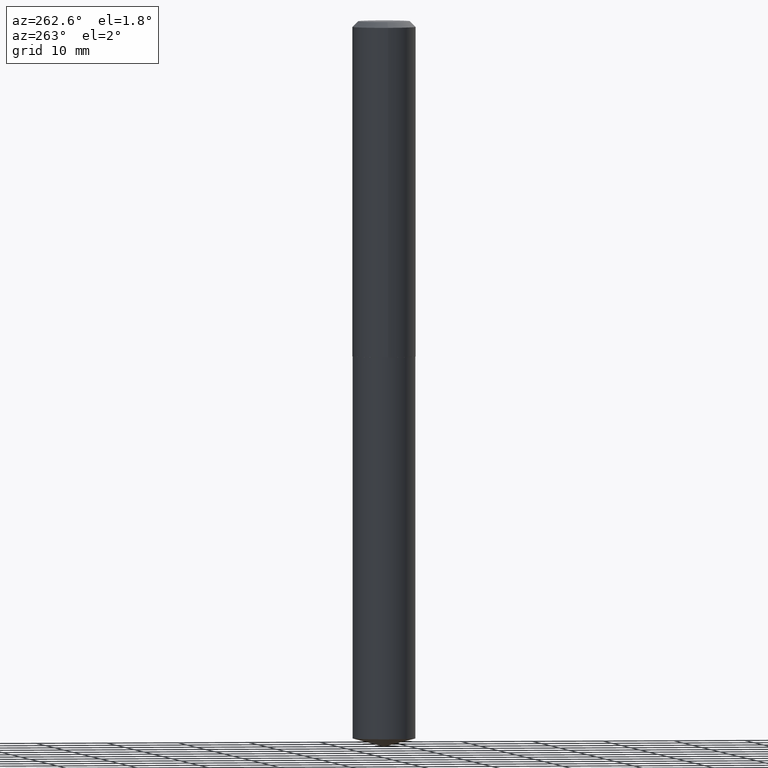
[diagram: clean part render]
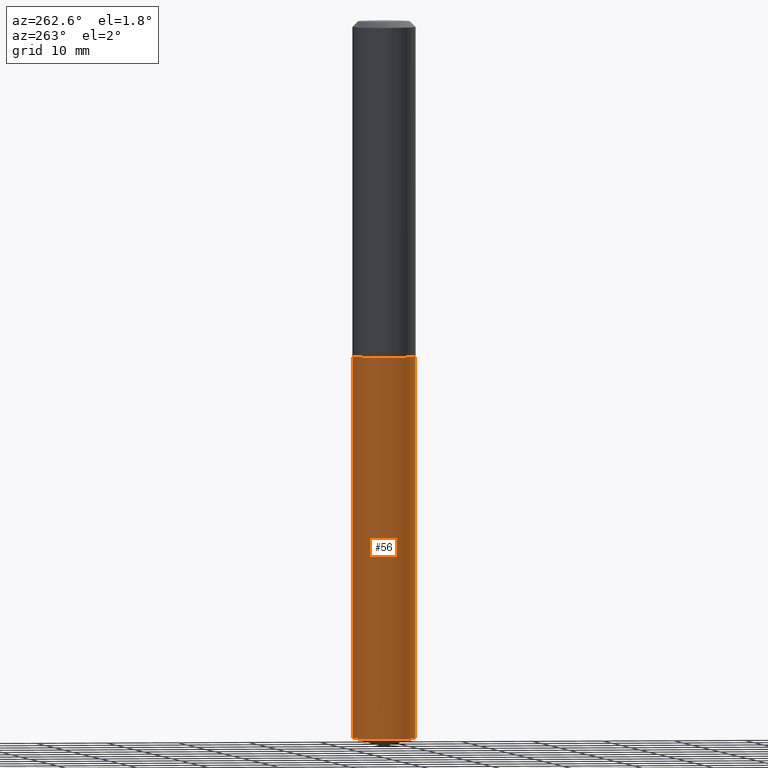
[diagram: same view with one face highlighted and labeled with its STEP entity id]
A machine part, auxiliary view. The second image highlights one B-rep face of the part: STEP entity #56.
In plain terms, the highlighted cylindrical surface (edge-blend (fillet) strip) has radius 4.4196 mm, axis along (-0, 0, 1).
Its self-contained STEP definition (entity closure, byte-faithful):
#5 = VERTEX_POINT ( 'NONE', #363 ) ;
#12 = CARTESIAN_POINT ( 'NONE',  ( 9.667801149324647603E-29, -1.380322537295493422E-14, -3.953376840516984903 ) ) ;
#27 = EDGE_CURVE ( 'NONE', #5, #133, #112, .T. ) ;
#31 = CARTESIAN_POINT ( 'NONE',  ( -1.215035505917364906E-15, -0.1740000000000064273, -1.847999999999999199 ) ) ;
#36 = LINE ( 'NONE', #372, #246 ) ;
#37 = ORIENTED_EDGE ( 'NONE', *, *, #96, .T. ) ;
#54 = EDGE_LOOP ( 'NONE', ( #190, #149, #37, #286 ) ) ;
#56 = ADVANCED_FACE ( 'NONE', ( #301 ), #365, .T. ) ;
#88 = CARTESIAN_POINT ( 'NONE',  ( 4.519226353830132171E-29, -6.452257514182132781E-15, -1.847999999999999865 ) ) ;
#96 = EDGE_CURVE ( 'NONE', #208, #133, #250, .T. ) ;
#99 = CARTESIAN_POINT ( 'NONE',  ( 4.519226353830132171E-29, -6.452257514182132781E-15, -1.847999999999999865 ) ) ;
#112 = CIRCLE ( 'NONE', #361, 0.1739999999999999880 ) ;
#114 = EDGE_CURVE ( 'NONE', #257, #208, #295, .T. ) ;
#123 = VECTOR ( 'NONE', #155, 39.37007874015748143 ) ;
#131 = DIRECTION ( 'NONE',  ( -6.982962677686265133E-15, -1.000000000000000000, 3.140055165131337128E-15 ) ) ;
#133 = VERTEX_POINT ( 'NONE', #31 ) ;
#149 = ORIENTED_EDGE ( 'NONE', *, *, #114, .T. ) ;
#152 = DIRECTION ( 'NONE',  ( -2.445440975892115844E-29, 3.491521193406753176E-15, 1.000000000000000000 ) ) ;
#155 = DIRECTION ( 'NONE',  ( -2.445440975892115844E-29, 3.491521193406753176E-15, 1.000000000000000000 ) ) ;
#169 = DIRECTION ( 'NONE',  ( -6.982962677686265133E-15, -1.000000000000000000, 3.140055165131337128E-15 ) ) ;
#185 = CARTESIAN_POINT ( 'NONE',  ( -1.215035505917364906E-15, -0.1740000000000064273, -1.847999999999999199 ) ) ;
#190 = ORIENTED_EDGE ( 'NONE', *, *, #327, .F. ) ;
#192 = DIRECTION ( 'NONE',  ( -6.982962677686265133E-15, -1.000000000000000000, 3.140055165131337128E-15 ) ) ;
#207 = DIRECTION ( 'NONE',  ( -2.445440975892115844E-29, 3.491521193406753176E-15, 1.000000000000000000 ) ) ;
#208 = VERTEX_POINT ( 'NONE', #287 ) ;
#223 = DIRECTION ( 'NONE',  ( -2.445440975892115844E-29, 3.491521193406753176E-15, 1.000000000000000000 ) ) ;
#235 = CARTESIAN_POINT ( 'NONE',  ( 1.236344360222670479E-15, 0.1739999999999861380, -3.953376840516985347 ) ) ;
#246 = VECTOR ( 'NONE', #152, 39.37007874015748143 ) ;
#250 = LINE ( 'NONE', #185, #123 ) ;
#257 = VERTEX_POINT ( 'NONE', #235 ) ;
#267 = AXIS2_PLACEMENT_3D ( 'NONE', #99, #343, #131 ) ;
#286 = ORIENTED_EDGE ( 'NONE', *, *, #27, .F. ) ;
#287 = CARTESIAN_POINT ( 'NONE',  ( -1.215035505917313433E-15, -0.1740000000000137825, -3.953376840516984014 ) ) ;
#295 = CIRCLE ( 'NONE', #373, 0.1739999999999999880 ) ;
#301 = FACE_OUTER_BOUND ( 'NONE', #54, .T. ) ;
#327 = EDGE_CURVE ( 'NONE', #257, #5, #36, .T. ) ;
#343 = DIRECTION ( 'NONE',  ( -2.445440975892115844E-29, 3.491521193406753176E-15, 1.000000000000000000 ) ) ;
#361 = AXIS2_PLACEMENT_3D ( 'NONE', #88, #207, #169 ) ;
#363 = CARTESIAN_POINT ( 'NONE',  ( 1.236344360222670676E-15, 0.1739999999999935210, -1.848000000000000309 ) ) ;
#365 = CYLINDRICAL_SURFACE ( 'NONE', #267, 0.1739999999999999880 ) ;
#372 = CARTESIAN_POINT ( 'NONE',  ( 1.236344360222619006E-15, 0.1739999999999935210, -1.848000000000000309 ) ) ;
#373 = AXIS2_PLACEMENT_3D ( 'NONE', #12, #223, #192 ) ;